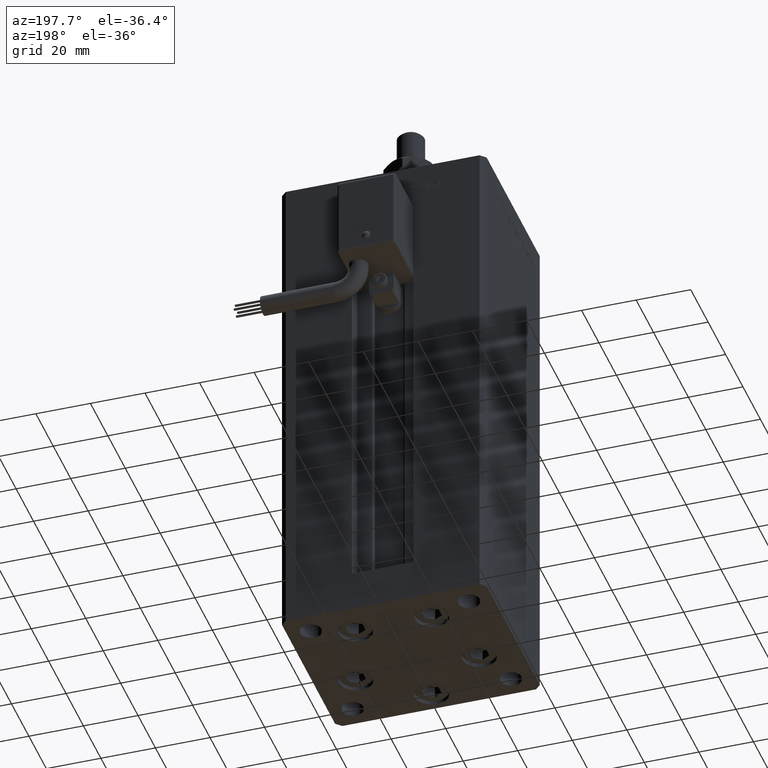
[diagram: clean part render]
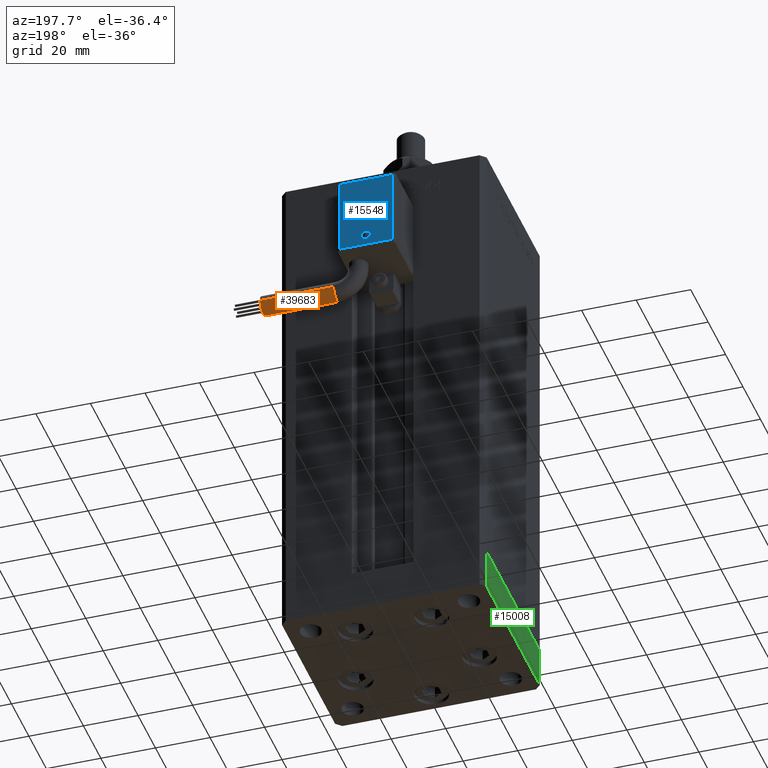
[diagram: same view with three faces highlighted in distinct colors, each labeled with its STEP entity id]
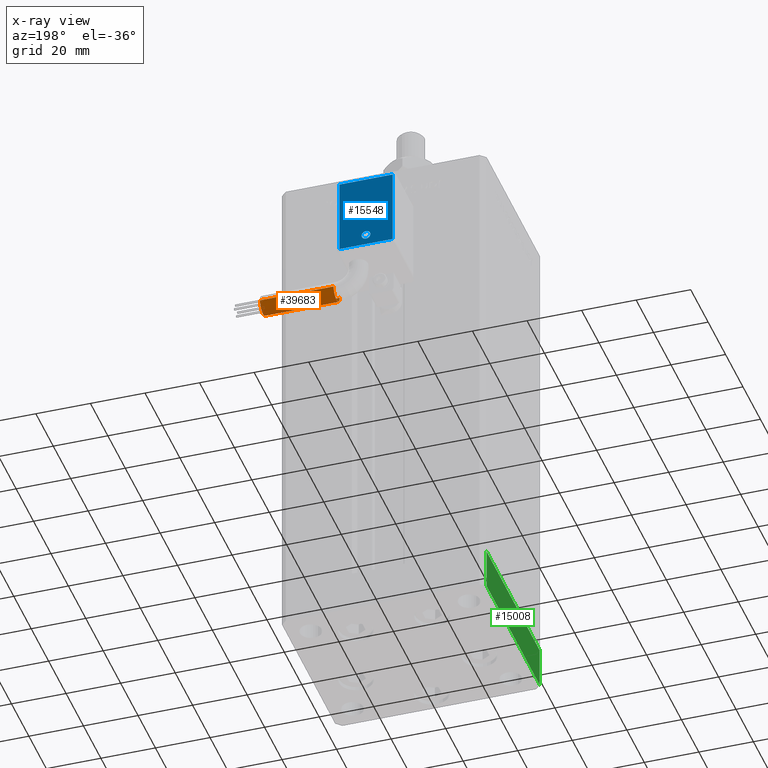
[diagram: x-ray of the same camera — body ghosted, the three highlighted faces saturated]
A machine part, auxiliary view with three faces highlighted in distinct colors.
The next image is the same camera in x-ray (body ghosted, the three faces saturated) — at least one of them is partly hidden behind the body in this view.
Their STEP definitions:

[orange] entity #39683 — the highlighted cylindrical surface (edge-blend (fillet) strip) has radius 3.5 mm, axis along (1, -0, 0).
#78 = ORIENTED_EDGE ( 'NONE', *, *, #9445, .T. ) ;
#2033 = ORIENTED_EDGE ( 'NONE', *, *, #17866, .F. ) ;
#2433 = CARTESIAN_POINT ( 'NONE',  ( 13.79999999999999893, 38.50000000000000000, -65.00000000000000000 ) ) ;
#4042 = CARTESIAN_POINT ( 'NONE',  ( 13.80000000000000071, 45.50000000000000711, -65.00000000000000000 ) ) ;
#6950 = DIRECTION ( 'NONE',  ( 1.000000000000000000, 0.000000000000000000, 2.220446049250000002E-16 ) ) ;
#9227 = VECTOR ( 'NONE', #41411, 1000.000000000000000 ) ;
#9445 = EDGE_CURVE ( 'NONE', #41951, #27779, #10746, .T. ) ;
#10609 = EDGE_CURVE ( 'NONE', #50711, #27779, #37625, .T. ) ;
#10746 = LINE ( 'NONE', #4042, #9227 ) ;
#11406 = CARTESIAN_POINT ( 'NONE',  ( 13.79999999999999893, 42.00000000000000000, -65.00000000000000000 ) ) ;
#11420 = LINE ( 'NONE', #51278, #42503 ) ;
#12910 = ORIENTED_EDGE ( 'NONE', *, *, #44011, .T. ) ;
#15260 = DIRECTION ( 'NONE',  ( 1.000000000000000000, 0.000000000000000000, 2.220446049250000002E-16 ) ) ;
#17844 = DIRECTION ( 'NONE',  ( 1.000000000000000000, -2.599999999999999847E-16, 2.220446049250000002E-16 ) ) ;
#17866 = EDGE_CURVE ( 'NONE', #42369, #50711, #11420, .T. ) ;
#18387 = AXIS2_PLACEMENT_3D ( 'NONE', #45659, #15260, #40786 ) ;
#21728 = VERTEX_POINT ( 'NONE', #48824 ) ;
#22142 = AXIS2_PLACEMENT_3D ( 'NONE', #11406, #42364, #28912 ) ;
#22151 = FACE_OUTER_BOUND ( 'NONE', #45706, .T. ) ;
#25026 = CARTESIAN_POINT ( 'NONE',  ( 13.79999999999999893, 42.00000000000000000, -65.00000000000000000 ) ) ;
#26736 = CARTESIAN_POINT ( 'NONE',  ( 13.79999999999999893, 42.00000000000000000, -65.00000000000000000 ) ) ;
#26805 = EDGE_CURVE ( 'NONE', #42369, #21728, #52384, .T. ) ;
#27779 = VERTEX_POINT ( 'NONE', #32856 ) ;
#28912 = DIRECTION ( 'NONE',  ( 0.000000000000000000, 0.000000000000000000, -1.000000000000000000 ) ) ;
#32856 = CARTESIAN_POINT ( 'NONE',  ( 40.80000000000000426, 45.50000000000000711, -65.00000000000000000 ) ) ;
#35332 = DIRECTION ( 'NONE',  ( -4.956352788505158337E-16, -1.000000000000000000, 0.000000000000000000 ) ) ;
#37071 = DIRECTION ( 'NONE',  ( 0.000000000000000000, 0.000000000000000000, -1.000000000000000000 ) ) ;
#37625 = CIRCLE ( 'NONE', #18387, 3.500000000000003109 ) ;
#38004 = AXIS2_PLACEMENT_3D ( 'NONE', #26736, #17844, #35332 ) ;
#39629 = CYLINDRICAL_SURFACE ( 'NONE', #38004, 3.500000000000003109 ) ;
#39683 = ADVANCED_FACE ( 'NONE', ( #22151 ), #39629, .T. ) ;
#39970 = CIRCLE ( 'NONE', #54633, 3.500000000000003109 ) ;
#40061 = ORIENTED_EDGE ( 'NONE', *, *, #10609, .F. ) ;
#40478 = ORIENTED_EDGE ( 'NONE', *, *, #26805, .T. ) ;
#40786 = DIRECTION ( 'NONE',  ( 0.000000000000000000, 0.000000000000000000, -1.000000000000000000 ) ) ;
#41411 = DIRECTION ( 'NONE',  ( 1.000000000000000000, -2.599999999999999847E-16, 2.220446049250000002E-16 ) ) ;
#41951 = VERTEX_POINT ( 'NONE', #49275 ) ;
#42364 = DIRECTION ( 'NONE',  ( 1.000000000000000000, 0.000000000000000000, 2.220446049250000002E-16 ) ) ;
#42369 = VERTEX_POINT ( 'NONE', #2433 ) ;
#42503 = VECTOR ( 'NONE', #54734, 1000.000000000000000 ) ;
#44011 = EDGE_CURVE ( 'NONE', #21728, #41951, #39970, .T. ) ;
#45659 = CARTESIAN_POINT ( 'NONE',  ( 40.80000000000000426, 42.00000000000000000, -65.00000000000000000 ) ) ;
#45706 = EDGE_LOOP ( 'NONE', ( #40478, #12910, #78, #40061, #2033 ) ) ;
#48824 = CARTESIAN_POINT ( 'NONE',  ( 13.79999999999999893, 42.00000000000000000, -68.50000000000000000 ) ) ;
#49275 = CARTESIAN_POINT ( 'NONE',  ( 13.79999999999999893, 45.50000000000000711, -65.00000000000000000 ) ) ;
#50711 = VERTEX_POINT ( 'NONE', #50832 ) ;
#50832 = CARTESIAN_POINT ( 'NONE',  ( 40.80000000000000426, 38.50000000000000000, -65.00000000000000000 ) ) ;
#51278 = CARTESIAN_POINT ( 'NONE',  ( 13.79999999999999716, 38.50000000000000000, -65.00000000000000000 ) ) ;
#52384 = CIRCLE ( 'NONE', #22142, 3.500000000000003109 ) ;
#54633 = AXIS2_PLACEMENT_3D ( 'NONE', #25026, #6950, #37071 ) ;
#54734 = DIRECTION ( 'NONE',  ( 1.000000000000000000, -2.599999999999999847E-16, 2.220446049250000002E-16 ) ) ;

[blue] entity #15548 — the highlighted planar face has unit normal (0, 1, 0).
#364 = ORIENTED_EDGE ( 'NONE', *, *, #8385, .T. ) ;
#538 = CARTESIAN_POINT ( 'NONE',  ( 1.067120849106190655E-14, 51.60000000000000142, -48.40573946085779511 ) ) ;
#1927 = DIRECTION ( 'NONE',  ( 0.000000000000000000, 0.000000000000000000, 1.000000000000000000 ) ) ;
#2375 = EDGE_CURVE ( 'NONE', #42101, #42454, #31029, .T. ) ;
#3029 = EDGE_CURVE ( 'NONE', #42454, #55958, #30578, .T. ) ;
#3666 = DIRECTION ( 'NONE',  ( 0.000000000000000000, -1.000000000000000000, -2.478176394252581634E-16 ) ) ;
#4171 = DIRECTION ( 'NONE',  ( 0.000000000000000000, 2.478176394252581634E-16, -1.000000000000000000 ) ) ;
#4281 = DIRECTION ( 'NONE',  ( -1.000000000000000000, 0.000000000000000000, 0.000000000000000000 ) ) ;
#5641 = CARTESIAN_POINT ( 'NONE',  ( 9.799999999999998934, 51.60000000000000142, -54.00000000000000000 ) ) ;
#6517 = DIRECTION ( 'NONE',  ( 0.000000000000000000, -1.000000000000000000, -2.478176394252581634E-16 ) ) ;
#8385 = EDGE_CURVE ( 'NONE', #32105, #53421, #11925, .T. ) ;
#9157 = ORIENTED_EDGE ( 'NONE', *, *, #3029, .T. ) ;
#10640 = LINE ( 'NONE', #25811, #24917 ) ;
#11210 = CARTESIAN_POINT ( 'NONE',  ( -9.799999999999998934, 51.60000000000000142, -54.00000000000000000 ) ) ;
#11925 = CIRCLE ( 'NONE', #47646, 1.594260539142210220 ) ;
#13201 = LINE ( 'NONE', #52480, #54334 ) ;
#14009 = DIRECTION ( 'NONE',  ( 0.000000000000000000, -2.478176394252581634E-16, 1.000000000000000000 ) ) ;
#15548 = ADVANCED_FACE ( 'NONE', ( #40677, #45269 ), #32081, .T. ) ;
#15873 = ORIENTED_EDGE ( 'NONE', *, *, #31844, .T. ) ;
#17912 = EDGE_LOOP ( 'NONE', ( #31336, #364 ) ) ;
#18100 = CARTESIAN_POINT ( 'NONE',  ( -9.799999999999998934, 51.59999999999999432, -26.00000000000000000 ) ) ;
#18556 = EDGE_CURVE ( 'NONE', #39716, #42101, #13201, .T. ) ;
#21168 = DIRECTION ( 'NONE',  ( 0.000000000000000000, 0.000000000000000000, 1.000000000000000000 ) ) ;
#21230 = EDGE_CURVE ( 'NONE', #53421, #32105, #26010, .T. ) ;
#24917 = VECTOR ( 'NONE', #4281, 1000.000000000000000 ) ;
#25811 = CARTESIAN_POINT ( 'NONE',  ( 9.799999999999998934, 51.60000000000000142, -54.00000000000000000 ) ) ;
#26010 = CIRCLE ( 'NONE', #48924, 1.594260539142210220 ) ;
#26237 = CARTESIAN_POINT ( 'NONE',  ( 9.799999999999998934, 51.59999999999999432, -26.00000000000000000 ) ) ;
#27776 = DIRECTION ( 'NONE',  ( -0.000000000000000000, 1.000000000000000000, 2.478176394252581634E-16 ) ) ;
#30578 = LINE ( 'NONE', #42899, #43052 ) ;
#30926 = CARTESIAN_POINT ( 'NONE',  ( 1.157444300081134802E-14, 51.60000000000000142, -51.59426053914221200 ) ) ;
#31029 = LINE ( 'NONE', #18100, #50323 ) ;
#31336 = ORIENTED_EDGE ( 'NONE', *, *, #21230, .T. ) ;
#31844 = EDGE_CURVE ( 'NONE', #55958, #39716, #10640, .T. ) ;
#32081 = PLANE ( 'NONE',  #35095 ) ;
#32105 = VERTEX_POINT ( 'NONE', #538 ) ;
#35095 = AXIS2_PLACEMENT_3D ( 'NONE', #53301, #27776, #14009 ) ;
#39651 = ORIENTED_EDGE ( 'NONE', *, *, #2375, .T. ) ;
#39716 = VERTEX_POINT ( 'NONE', #11210 ) ;
#40677 = FACE_BOUND ( 'NONE', #17912, .T. ) ;
#42101 = VERTEX_POINT ( 'NONE', #51250 ) ;
#42454 = VERTEX_POINT ( 'NONE', #26237 ) ;
#42899 = CARTESIAN_POINT ( 'NONE',  ( 9.799999999999998934, 51.59999999999999432, -26.00000000000000000 ) ) ;
#42967 = CARTESIAN_POINT ( 'NONE',  ( 1.122044604924999863E-14, 51.60000000000000142, -50.00000000000000000 ) ) ;
#43052 = VECTOR ( 'NONE', #4171, 1000.000000000000000 ) ;
#45269 = FACE_OUTER_BOUND ( 'NONE', #46076, .T. ) ;
#46076 = EDGE_LOOP ( 'NONE', ( #39651, #9157, #15873, #46705 ) ) ;
#46095 = CARTESIAN_POINT ( 'NONE',  ( 1.122044604924999863E-14, 51.60000000000000142, -50.00000000000000000 ) ) ;
#46705 = ORIENTED_EDGE ( 'NONE', *, *, #18556, .T. ) ;
#47646 = AXIS2_PLACEMENT_3D ( 'NONE', #42967, #3666, #21168 ) ;
#48506 = DIRECTION ( 'NONE',  ( 1.000000000000000000, 0.000000000000000000, 0.000000000000000000 ) ) ;
#48924 = AXIS2_PLACEMENT_3D ( 'NONE', #46095, #6517, #1927 ) ;
#50323 = VECTOR ( 'NONE', #48506, 1000.000000000000000 ) ;
#51250 = CARTESIAN_POINT ( 'NONE',  ( -9.799999999999998934, 51.59999999999999432, -26.00000000000000000 ) ) ;
#52208 = DIRECTION ( 'NONE',  ( 0.000000000000000000, -2.478176394252581634E-16, 1.000000000000000000 ) ) ;
#52480 = CARTESIAN_POINT ( 'NONE',  ( -9.799999999999998934, 51.60000000000000142, -54.00000000000000000 ) ) ;
#53301 = CARTESIAN_POINT ( 'NONE',  ( -2.664535259099999904E-33, 51.59999999999998721, 1.277460843040079085E-14 ) ) ;
#53421 = VERTEX_POINT ( 'NONE', #30926 ) ;
#54334 = VECTOR ( 'NONE', #52208, 1000.000000000000000 ) ;
#55958 = VERTEX_POINT ( 'NONE', #5641 ) ;

[green] entity #15008 — the highlighted planar face has unit normal (-1, 0, 0).
#553 = EDGE_CURVE ( 'NONE', #41704, #47227, #20245, .T. ) ;
#1385 = ORIENTED_EDGE ( 'NONE', *, *, #12880, .F. ) ;
#5621 = ORIENTED_EDGE ( 'NONE', *, *, #23371, .F. ) ;
#6331 = CARTESIAN_POINT ( 'NONE',  ( 37.50000000000001421, -30.50000000000000711, -15.00000000000000000 ) ) ;
#8415 = VECTOR ( 'NONE', #42934, 1000.000000000000000 ) ;
#9634 = DIRECTION ( 'NONE',  ( -1.478780668045803018E-15, 1.000000000000000000, 0.000000000000000000 ) ) ;
#10526 = VECTOR ( 'NONE', #37470, 1000.000000000000000 ) ;
#11659 = LINE ( 'NONE', #51231, #10526 ) ;
#12539 = CARTESIAN_POINT ( 'NONE',  ( 37.50000000000001421, -30.50000000000000711, 0.000000000000000000 ) ) ;
#12880 = EDGE_CURVE ( 'NONE', #25823, #47227, #20269, .T. ) ;
#13376 = PLANE ( 'NONE',  #36880 ) ;
#13652 = EDGE_CURVE ( 'NONE', #26484, #41704, #54634, .T. ) ;
#14777 = CARTESIAN_POINT ( 'NONE',  ( 37.50000000000001421, -30.50000000000000711, -15.00000000000000000 ) ) ;
#15008 = ADVANCED_FACE ( 'NONE', ( #53511 ), #13376, .T. ) ;
#16339 = CARTESIAN_POINT ( 'NONE',  ( 37.49999999999992184, 30.50000000000001066, -15.00000000000000000 ) ) ;
#16396 = VECTOR ( 'NONE', #41487, 1000.000000000000000 ) ;
#18260 = ORIENTED_EDGE ( 'NONE', *, *, #13652, .T. ) ;
#20245 = LINE ( 'NONE', #24011, #16396 ) ;
#20269 = LINE ( 'NONE', #12539, #8415 ) ;
#23371 = EDGE_CURVE ( 'NONE', #26484, #25823, #11659, .T. ) ;
#24011 = CARTESIAN_POINT ( 'NONE',  ( 37.49999999999992184, 30.50000000000001066, -15.00000000000000000 ) ) ;
#25823 = VERTEX_POINT ( 'NONE', #32070 ) ;
#25855 = VECTOR ( 'NONE', #36565, 1000.000000000000000 ) ;
#26484 = VERTEX_POINT ( 'NONE', #6331 ) ;
#30884 = CARTESIAN_POINT ( 'NONE',  ( 37.50000000000001421, -30.50000000000000711, -15.00000000000000000 ) ) ;
#32070 = CARTESIAN_POINT ( 'NONE',  ( 37.50000000000001421, -30.50000000000000711, 0.000000000000000000 ) ) ;
#36565 = DIRECTION ( 'NONE',  ( -1.478780668045802821E-15, 1.000000000000000000, 0.000000000000000000 ) ) ;
#36880 = AXIS2_PLACEMENT_3D ( 'NONE', #30884, #53225, #9634 ) ;
#37470 = DIRECTION ( 'NONE',  ( 0.000000000000000000, 0.000000000000000000, 1.000000000000000000 ) ) ;
#37502 = EDGE_LOOP ( 'NONE', ( #1385, #5621, #18260, #52628 ) ) ;
#38477 = CARTESIAN_POINT ( 'NONE',  ( 37.49999999999992184, 30.50000000000001066, 0.000000000000000000 ) ) ;
#41487 = DIRECTION ( 'NONE',  ( 0.000000000000000000, 0.000000000000000000, 1.000000000000000000 ) ) ;
#41704 = VERTEX_POINT ( 'NONE', #16339 ) ;
#42934 = DIRECTION ( 'NONE',  ( -1.478780668045802821E-15, 1.000000000000000000, 0.000000000000000000 ) ) ;
#47227 = VERTEX_POINT ( 'NONE', #38477 ) ;
#51231 = CARTESIAN_POINT ( 'NONE',  ( 37.50000000000001421, -30.50000000000000711, -15.00000000000000000 ) ) ;
#52628 = ORIENTED_EDGE ( 'NONE', *, *, #553, .T. ) ;
#53225 = DIRECTION ( 'NONE',  ( 1.000000000000000000, 1.478780668045803018E-15, -0.000000000000000000 ) ) ;
#53511 = FACE_OUTER_BOUND ( 'NONE', #37502, .T. ) ;
#54634 = LINE ( 'NONE', #14777, #25855 ) ;